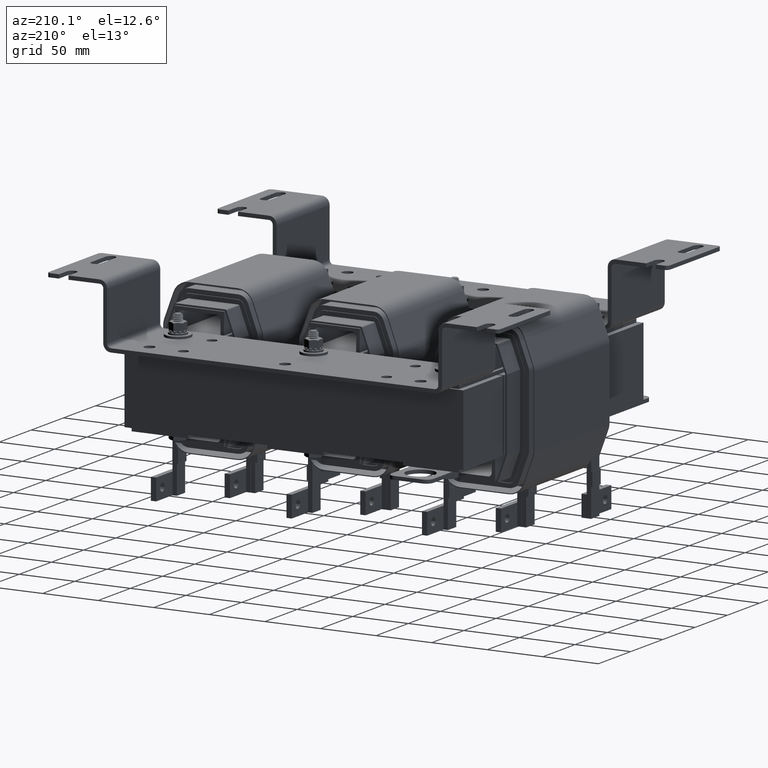
[diagram: clean part render]
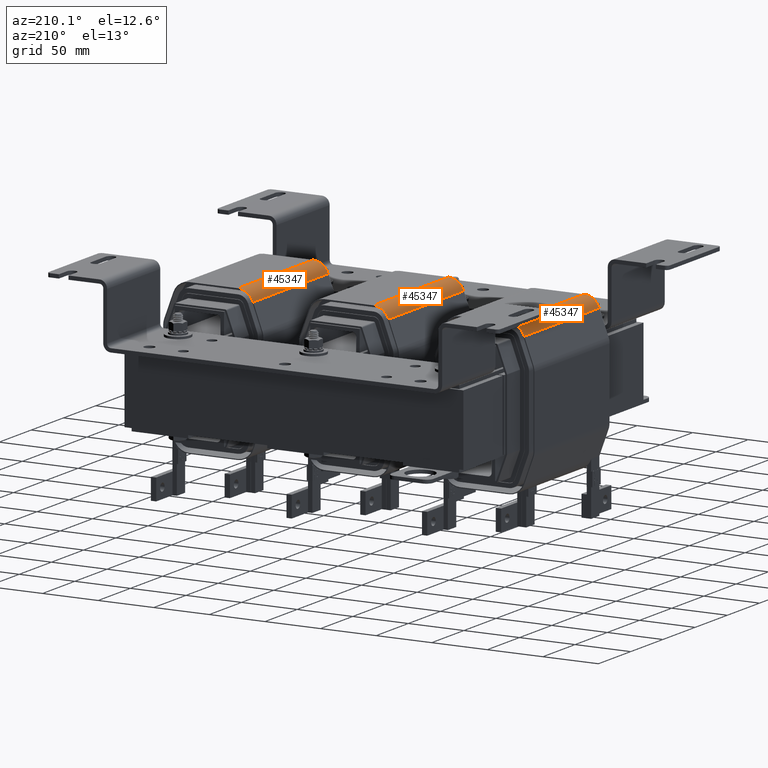
[diagram: same view with one multi-face feature highlighted, each face labeled with its STEP entity id]
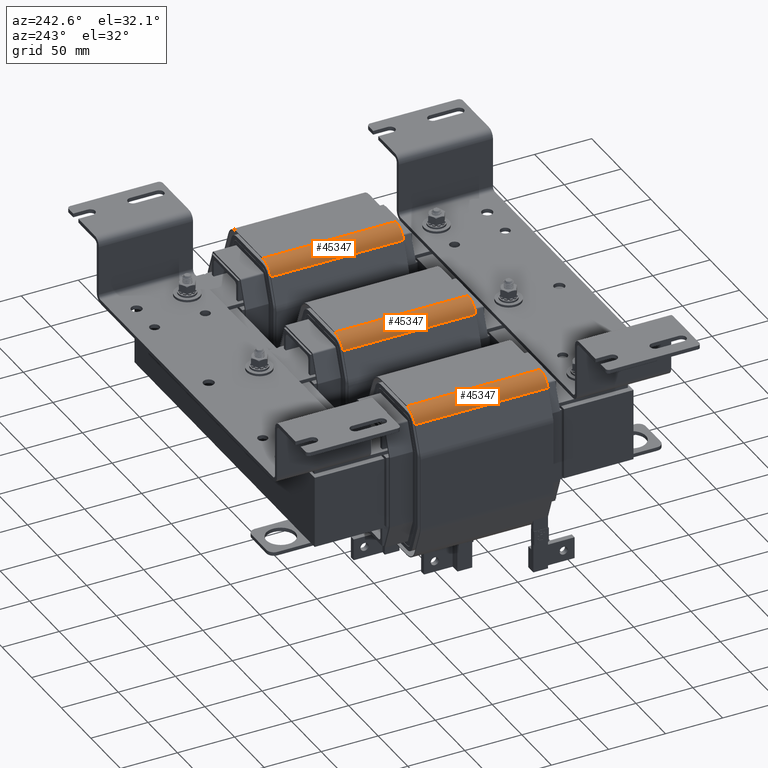
[diagram: same view with one multi-face feature highlighted, each face labeled with its STEP entity id]
A machine part, auxiliary view. The highlighted faces form ONE feature: a constant-radius fillet chain: 3 tangent blend faces with common blend radius 14.5288 mm. The faces share edges in the B-rep.
A second angle (auxiliary view) of the same feature is appended — it is thin or edge-on in the first view.
Their STEP definitions:
[1] entity #45347 (Cylinder):
#1001=CYLINDRICAL_SURFACE('',#48826,0.572000000004518);
#2079=CIRCLE('',#48827,0.572000000004518);
#2080=CIRCLE('',#48828,0.572000000004518);
#5947=FACE_OUTER_BOUND('',#8538,.T.);
#8538=EDGE_LOOP('',(#40729,#40730,#40731,#40732));
#12844=LINE('',#78143,#17125);
#12845=LINE('',#78149,#17126);
#17125=VECTOR('',#58362,0.393700787401575);
#17126=VECTOR('',#58369,0.393700787401575);
#22325=VERTEX_POINT('',#78139);
#22326=VERTEX_POINT('',#78141);
#22327=VERTEX_POINT('',#78145);
#22328=VERTEX_POINT('',#78147);
#28578=EDGE_CURVE('',#22325,#22326,#12844,.T.);
#28579=EDGE_CURVE('',#22325,#22327,#2079,.T.);
#28580=EDGE_CURVE('',#22328,#22326,#2080,.T.);
#28581=EDGE_CURVE('',#22327,#22328,#12845,.T.);
#40729=ORIENTED_EDGE('',*,*,#28579,.F.);
#40730=ORIENTED_EDGE('',*,*,#28578,.T.);
#40731=ORIENTED_EDGE('',*,*,#28580,.F.);
#40732=ORIENTED_EDGE('',*,*,#28581,.F.);
#45347=ADVANCED_FACE('',(#5947),#1001,.T.);
#48826=AXIS2_PLACEMENT_3D('',#78144,#58363,#58364);
#48827=AXIS2_PLACEMENT_3D('',#78146,#58365,#58366);
#48828=AXIS2_PLACEMENT_3D('',#78148,#58367,#58368);
#58362=DIRECTION('',(0.,0.,1.));
#58363=DIRECTION('center_axis',(0.,0.,1.));
#58364=DIRECTION('ref_axis',(-0.348186529146046,0.937425272179724,0.));
#58365=DIRECTION('center_axis',(0.,0.,-1.));
#58366=DIRECTION('ref_axis',(-0.348186529146046,0.937425272179724,0.));
#58367=DIRECTION('center_axis',(0.,0.,1.));
#58368=DIRECTION('ref_axis',(-0.348186529146046,0.937425272179724,0.));
#58369=DIRECTION('',(0.,0.,1.));
#78139=CARTESIAN_POINT('',(3.94700000042745,-2.61699999975932,0.));
#78141=CARTESIAN_POINT('',(3.94700000042745,-2.61699999975932,4.59));
#78143=CARTESIAN_POINT('',(3.94700000042745,-2.61699999975932,0.));
#78144=CARTESIAN_POINT('Origin',(3.37500000042293,-2.61700000032758,0.));
#78145=CARTESIAN_POINT('',(3.57416269509604,-3.15320725601862,0.));
#78146=CARTESIAN_POINT('Origin',(3.37500000042293,-2.61700000032758,0.));
#78147=CARTESIAN_POINT('',(3.57416269509604,-3.15320725601862,4.59));
#78148=CARTESIAN_POINT('Origin',(3.37500000042293,-2.61700000032758,4.59));
#78149=CARTESIAN_POINT('',(3.57416269509604,-3.15320725601862,0.));
[2] entity #45347 (Cylinder):
#1001=CYLINDRICAL_SURFACE('',#48826,0.572000000004518);
#2079=CIRCLE('',#48827,0.572000000004518);
#2080=CIRCLE('',#48828,0.572000000004518);
#5947=FACE_OUTER_BOUND('',#8538,.T.);
#8538=EDGE_LOOP('',(#40729,#40730,#40731,#40732));
#12844=LINE('',#78143,#17125);
#12845=LINE('',#78149,#17126);
#17125=VECTOR('',#58362,0.393700787401575);
#17126=VECTOR('',#58369,0.393700787401575);
#22325=VERTEX_POINT('',#78139);
#22326=VERTEX_POINT('',#78141);
#22327=VERTEX_POINT('',#78145);
#22328=VERTEX_POINT('',#78147);
#28578=EDGE_CURVE('',#22325,#22326,#12844,.T.);
#28579=EDGE_CURVE('',#22325,#22327,#2079,.T.);
#28580=EDGE_CURVE('',#22328,#22326,#2080,.T.);
#28581=EDGE_CURVE('',#22327,#22328,#12845,.T.);
#40729=ORIENTED_EDGE('',*,*,#28579,.F.);
#40730=ORIENTED_EDGE('',*,*,#28578,.T.);
#40731=ORIENTED_EDGE('',*,*,#28580,.F.);
#40732=ORIENTED_EDGE('',*,*,#28581,.F.);
#45347=ADVANCED_FACE('',(#5947),#1001,.T.);
#48826=AXIS2_PLACEMENT_3D('',#78144,#58363,#58364);
#48827=AXIS2_PLACEMENT_3D('',#78146,#58365,#58366);
#48828=AXIS2_PLACEMENT_3D('',#78148,#58367,#58368);
#58362=DIRECTION('',(0.,0.,1.));
#58363=DIRECTION('center_axis',(0.,0.,1.));
#58364=DIRECTION('ref_axis',(-0.348186529146046,0.937425272179724,0.));
#58365=DIRECTION('center_axis',(0.,0.,-1.));
#58366=DIRECTION('ref_axis',(-0.348186529146046,0.937425272179724,0.));
#58367=DIRECTION('center_axis',(0.,0.,1.));
#58368=DIRECTION('ref_axis',(-0.348186529146046,0.937425272179724,0.));
#58369=DIRECTION('',(0.,0.,1.));
#78139=CARTESIAN_POINT('',(3.94700000042745,-2.61699999975932,0.));
#78141=CARTESIAN_POINT('',(3.94700000042745,-2.61699999975932,4.59));
#78143=CARTESIAN_POINT('',(3.94700000042745,-2.61699999975932,0.));
#78144=CARTESIAN_POINT('Origin',(3.37500000042293,-2.61700000032758,0.));
#78145=CARTESIAN_POINT('',(3.57416269509604,-3.15320725601862,0.));
#78146=CARTESIAN_POINT('Origin',(3.37500000042293,-2.61700000032758,0.));
#78147=CARTESIAN_POINT('',(3.57416269509604,-3.15320725601862,4.59));
#78148=CARTESIAN_POINT('Origin',(3.37500000042293,-2.61700000032758,4.59));
#78149=CARTESIAN_POINT('',(3.57416269509604,-3.15320725601862,0.));
[3] entity #45347 (Cylinder):
#1001=CYLINDRICAL_SURFACE('',#48826,0.572000000004518);
#2079=CIRCLE('',#48827,0.572000000004518);
#2080=CIRCLE('',#48828,0.572000000004518);
#5947=FACE_OUTER_BOUND('',#8538,.T.);
#8538=EDGE_LOOP('',(#40729,#40730,#40731,#40732));
#12844=LINE('',#78143,#17125);
#12845=LINE('',#78149,#17126);
#17125=VECTOR('',#58362,0.393700787401575);
#17126=VECTOR('',#58369,0.393700787401575);
#22325=VERTEX_POINT('',#78139);
#22326=VERTEX_POINT('',#78141);
#22327=VERTEX_POINT('',#78145);
#22328=VERTEX_POINT('',#78147);
#28578=EDGE_CURVE('',#22325,#22326,#12844,.T.);
#28579=EDGE_CURVE('',#22325,#22327,#2079,.T.);
#28580=EDGE_CURVE('',#22328,#22326,#2080,.T.);
#28581=EDGE_CURVE('',#22327,#22328,#12845,.T.);
#40729=ORIENTED_EDGE('',*,*,#28579,.F.);
#40730=ORIENTED_EDGE('',*,*,#28578,.T.);
#40731=ORIENTED_EDGE('',*,*,#28580,.F.);
#40732=ORIENTED_EDGE('',*,*,#28581,.F.);
#45347=ADVANCED_FACE('',(#5947),#1001,.T.);
#48826=AXIS2_PLACEMENT_3D('',#78144,#58363,#58364);
#48827=AXIS2_PLACEMENT_3D('',#78146,#58365,#58366);
#48828=AXIS2_PLACEMENT_3D('',#78148,#58367,#58368);
#58362=DIRECTION('',(0.,0.,1.));
#58363=DIRECTION('center_axis',(0.,0.,1.));
#58364=DIRECTION('ref_axis',(-0.348186529146046,0.937425272179724,0.));
#58365=DIRECTION('center_axis',(0.,0.,-1.));
#58366=DIRECTION('ref_axis',(-0.348186529146046,0.937425272179724,0.));
#58367=DIRECTION('center_axis',(0.,0.,1.));
#58368=DIRECTION('ref_axis',(-0.348186529146046,0.937425272179724,0.));
#58369=DIRECTION('',(0.,0.,1.));
#78139=CARTESIAN_POINT('',(3.94700000042745,-2.61699999975932,0.));
#78141=CARTESIAN_POINT('',(3.94700000042745,-2.61699999975932,4.59));
#78143=CARTESIAN_POINT('',(3.94700000042745,-2.61699999975932,0.));
#78144=CARTESIAN_POINT('Origin',(3.37500000042293,-2.61700000032758,0.));
#78145=CARTESIAN_POINT('',(3.57416269509604,-3.15320725601862,0.));
#78146=CARTESIAN_POINT('Origin',(3.37500000042293,-2.61700000032758,0.));
#78147=CARTESIAN_POINT('',(3.57416269509604,-3.15320725601862,4.59));
#78148=CARTESIAN_POINT('Origin',(3.37500000042293,-2.61700000032758,4.59));
#78149=CARTESIAN_POINT('',(3.57416269509604,-3.15320725601862,0.));